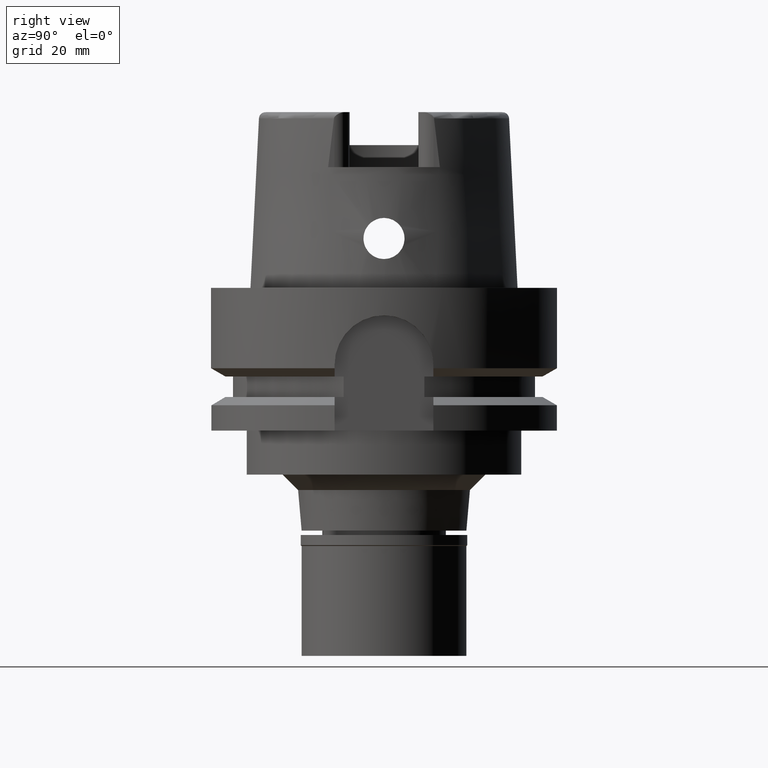
[diagram: clean part render]
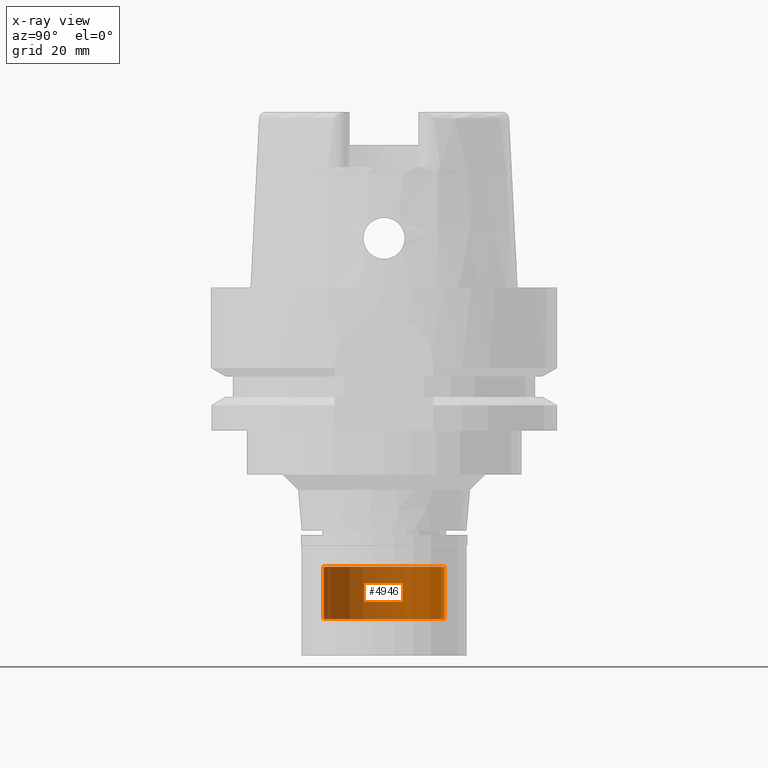
[diagram: x-ray — body ghosted, one internal face saturated and labeled with its STEP entity id]
A machine part, right view, then the same camera in x-ray: the body is ghosted and one INTERNAL B-rep face — a face not visible from any outside direction — is saturated and labeled: STEP entity #4946.
In plain terms, the highlighted cylindrical surface (partial cylindrical patch) has radius 11 mm, axis along (0, 0, 1).
Its self-contained STEP definition (entity closure, byte-faithful):
#10 = VERTEX_POINT ( 'NONE', #3398 ) ;
#549 = EDGE_CURVE ( 'NONE', #1642, #10, #3012, .T. ) ;
#608 = ORIENTED_EDGE ( 'NONE', *, *, #1687, .T. ) ;
#610 = ORIENTED_EDGE ( 'NONE', *, *, #2359, .T. ) ;
#872 = DIRECTION ( 'NONE',  ( 0.0000000000000000000, 0.0000000000000000000, 1.000000000000000000 ) ) ;
#926 = VERTEX_POINT ( 'NONE', #1876 ) ;
#1122 = CIRCLE ( 'NONE', #1388, 11.00000000000000000 ) ;
#1249 = DIRECTION ( 'NONE',  ( 0.0000000000000000000, 0.0000000000000000000, 1.000000000000000000 ) ) ;
#1388 = AXIS2_PLACEMENT_3D ( 'NONE', #3484, #872, #3514 ) ;
#1515 = ORIENTED_EDGE ( 'NONE', *, *, #549, .F. ) ;
#1587 = CYLINDRICAL_SURFACE ( 'NONE', #2563, 11.00000000000000000 ) ;
#1642 = VERTEX_POINT ( 'NONE', #2437 ) ;
#1687 = EDGE_CURVE ( 'NONE', #1642, #926, #3232, .T. ) ;
#1705 = DIRECTION ( 'NONE',  ( 0.0000000000000000000, 1.000000000000000000, 0.0000000000000000000 ) ) ;
#1750 = VECTOR ( 'NONE', #2272, 1000.000000000000000 ) ;
#1789 = ORIENTED_EDGE ( 'NONE', *, *, #3806, .T. ) ;
#1876 = CARTESIAN_POINT ( 'NONE',  ( 0.0000000000000000000, 11.00000000000000000, -50.79999999999999716 ) ) ;
#2272 = DIRECTION ( 'NONE',  ( 0.0000000000000000000, 0.0000000000000000000, -1.000000000000000000 ) ) ;
#2359 = EDGE_CURVE ( 'NONE', #2639, #10, #1122, .T. ) ;
#2437 = CARTESIAN_POINT ( 'NONE',  ( 0.0000000000000000000, -11.00000000000000000, -50.79999999999999716 ) ) ;
#2497 = AXIS2_PLACEMENT_3D ( 'NONE', #4629, #3798, #4311 ) ;
#2563 = AXIS2_PLACEMENT_3D ( 'NONE', #5604, #1249, #1705 ) ;
#2639 = VERTEX_POINT ( 'NONE', #4861 ) ;
#2698 = CARTESIAN_POINT ( 'NONE',  ( 0.0000000000000000000, -11.00000000000000000, -50.79999999999999716 ) ) ;
#3012 = LINE ( 'NONE', #2698, #1750 ) ;
#3031 = EDGE_LOOP ( 'NONE', ( #610, #1515, #608, #1789 ) ) ;
#3232 = CIRCLE ( 'NONE', #2497, 11.00000000000000000 ) ;
#3233 = DIRECTION ( 'NONE',  ( 0.0000000000000000000, 0.0000000000000000000, -1.000000000000000000 ) ) ;
#3398 = CARTESIAN_POINT ( 'NONE',  ( 0.0000000000000000000, -11.00000000000000000, -60.29999999999999716 ) ) ;
#3484 = CARTESIAN_POINT ( 'NONE',  ( 0.0000000000000000000, 0.0000000000000000000, -60.29999999999999716 ) ) ;
#3514 = DIRECTION ( 'NONE',  ( 0.0000000000000000000, 1.000000000000000000, 0.0000000000000000000 ) ) ;
#3540 = LINE ( 'NONE', #5287, #4041 ) ;
#3798 = DIRECTION ( 'NONE',  ( 0.0000000000000000000, 0.0000000000000000000, -1.000000000000000000 ) ) ;
#3806 = EDGE_CURVE ( 'NONE', #926, #2639, #3540, .T. ) ;
#4041 = VECTOR ( 'NONE', #3233, 1000.000000000000000 ) ;
#4305 = FACE_OUTER_BOUND ( 'NONE', #3031, .T. ) ;
#4311 = DIRECTION ( 'NONE',  ( 0.0000000000000000000, -1.000000000000000000, 0.0000000000000000000 ) ) ;
#4629 = CARTESIAN_POINT ( 'NONE',  ( 0.0000000000000000000, 0.0000000000000000000, -50.79999999999999716 ) ) ;
#4861 = CARTESIAN_POINT ( 'NONE',  ( 0.0000000000000000000, 11.00000000000000000, -60.29999999999999716 ) ) ;
#4946 = ADVANCED_FACE ( 'NONE', ( #4305 ), #1587, .T. ) ;
#5287 = CARTESIAN_POINT ( 'NONE',  ( 0.0000000000000000000, 11.00000000000000000, -50.79999999999999716 ) ) ;
#5604 = CARTESIAN_POINT ( 'NONE',  ( 0.0000000000000000000, 0.0000000000000000000, 0.0000000000000000000 ) ) ;